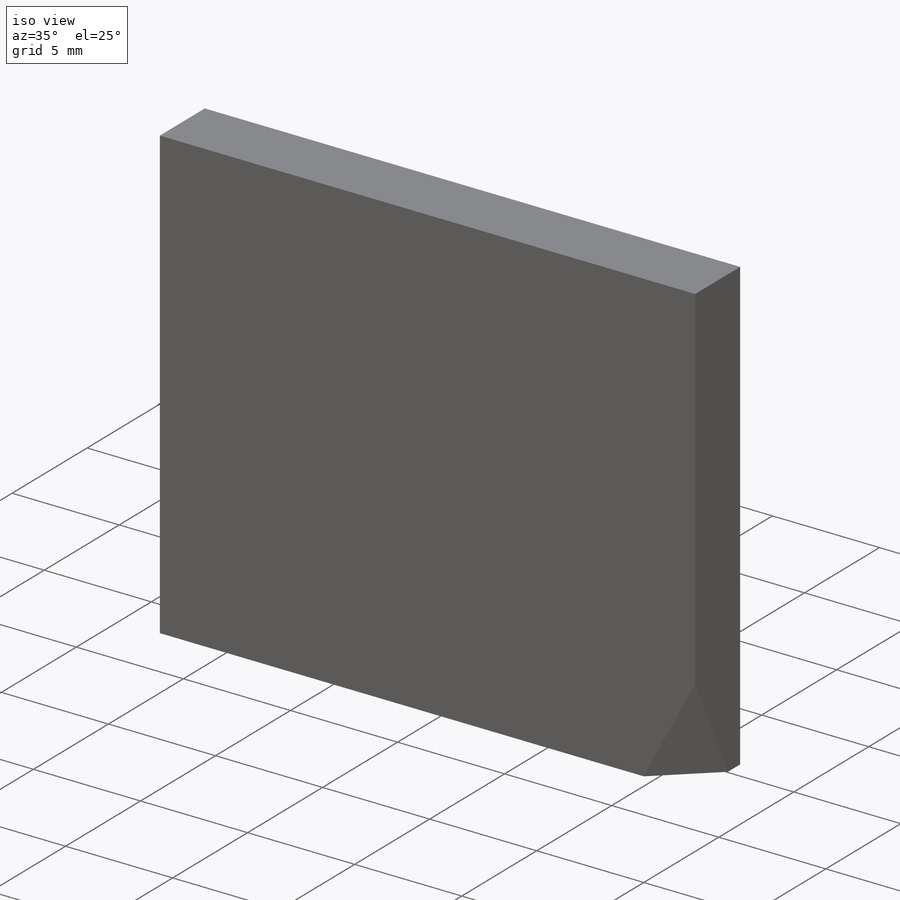
[diagram: iso view]
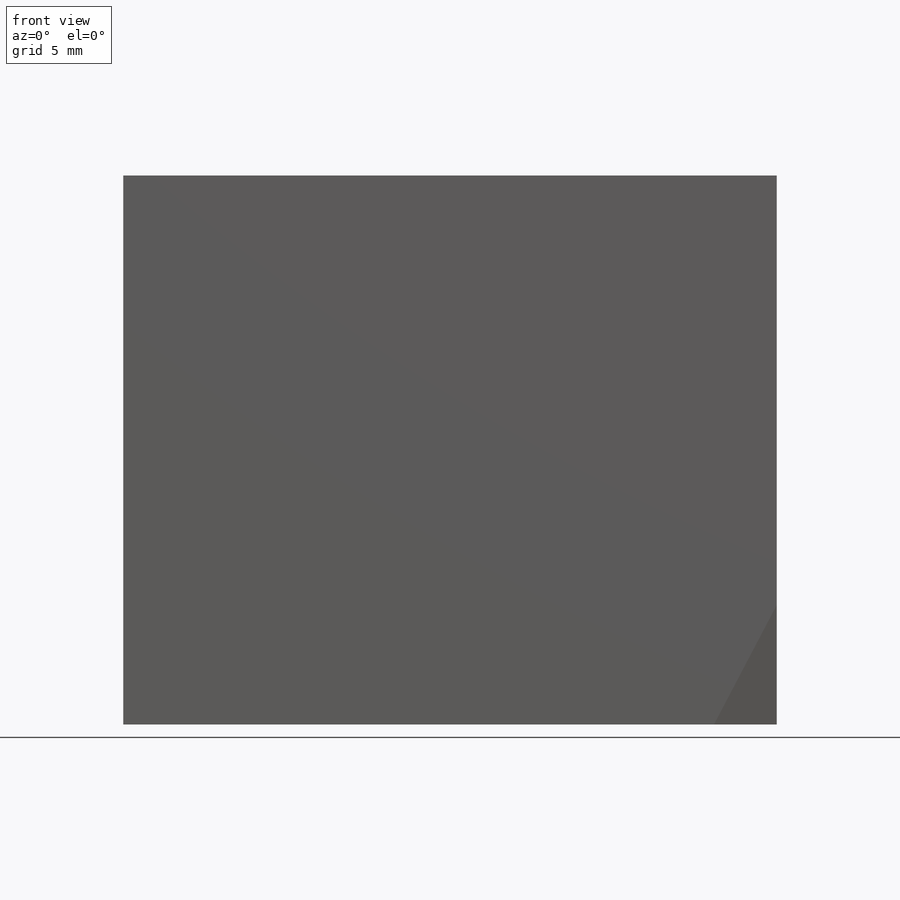
[diagram: front view]
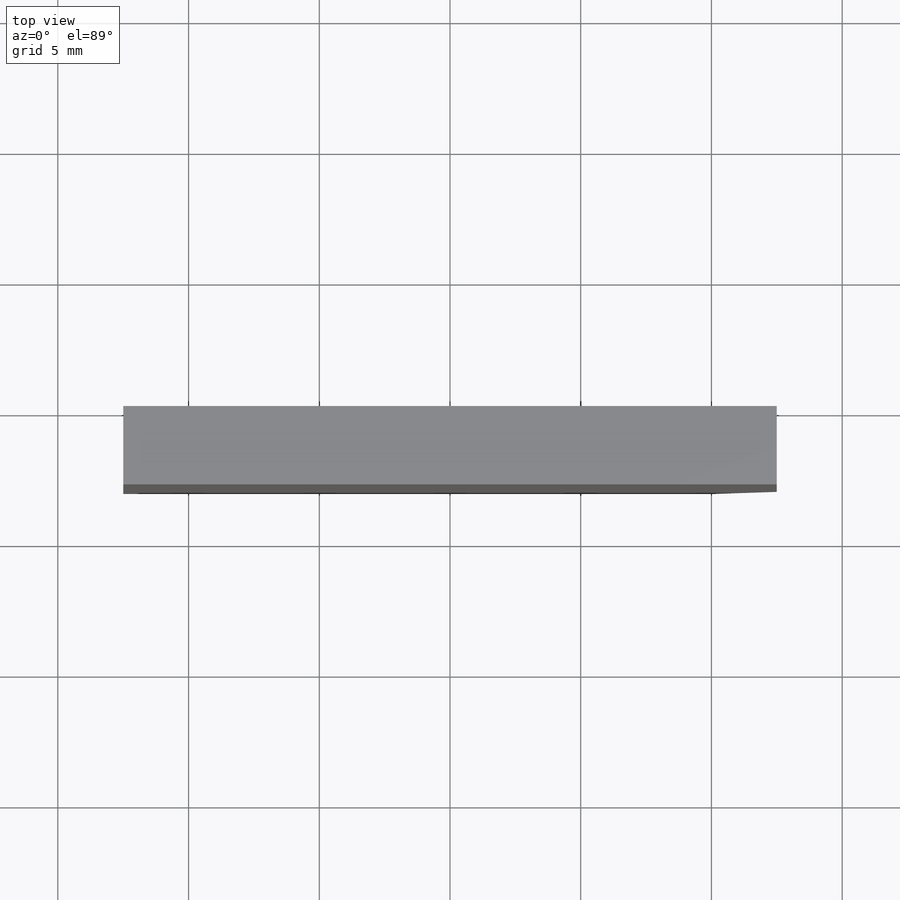
[diagram: top view]
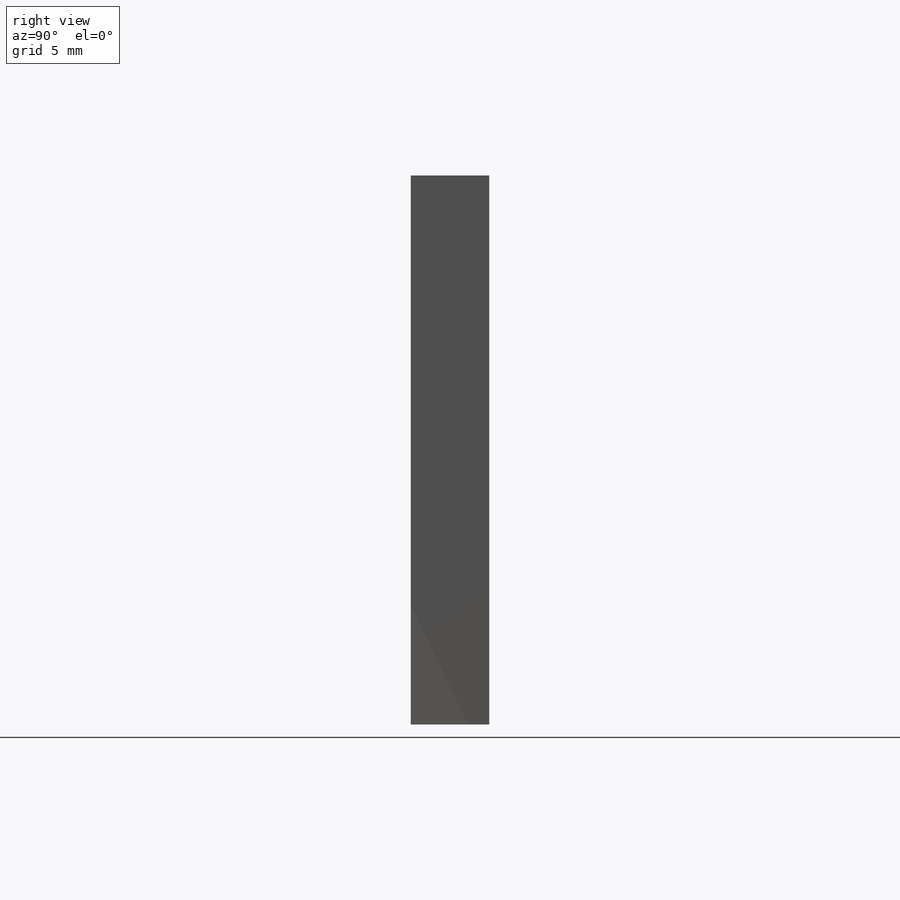
[diagram: right view]
SOLIDWORKS PART (.sldprt)
format: sldprt  version: not decoded by parser v0  size: 169,472 bytes
history: native  units: mm
features: chamfer x5, sketch x2, material x1, extrude x1, plane x1, cut_extrude x1 (+14 scaffold rows collapsed)
feature tree (25):
  scaffold x14  (default folders/planes/origin — collapsed)
  material  "Стекло"
  sketch  "Эскиз1"  dims[D1=21.0mm D2=25.0mm D3=12.5mm D4=10.5mm]
  extrude  "Вытянуть1"  Depth=3mm
  chamfer  "Фаска2"  Distance=3mm Angle=45deg
  chamfer  "Фаска3"  Distance=4mm Angle=30deg
  chamfer  "Фаска4"  Distance=4mm Angle=30deg
  chamfer  "Фаска5"  Distance=1mm Angle=45deg
  chamfer  "Фаска1"  Distance=0.3mm Angle=45deg Material_Int=0mm Material_Ext=0mm Surface=0mm
  plane  "Плоскость1"
  sketch  "Эскиз5"  dims[D1=2.0mm D2=4.0mm]
  cut_extrude  "Вырез-Вытянуть3"  [1 undecoded]
decode coverage: 8 of 9 modeling features carry decoded parameters
note: 1 parameter value undecoded
note: suppression state not decoded; provenance and decode notes live in map.json
